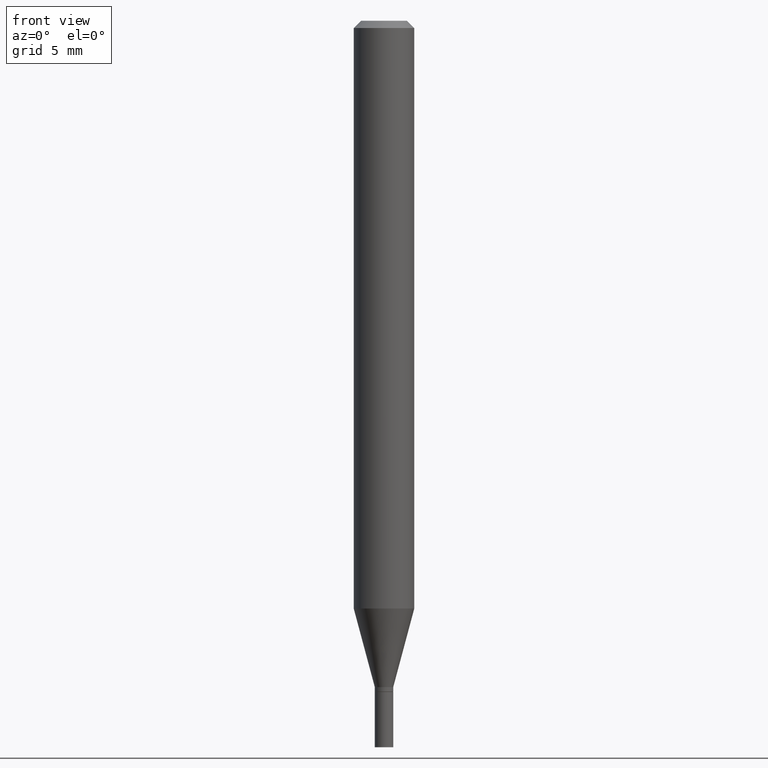
[diagram: clean part render]
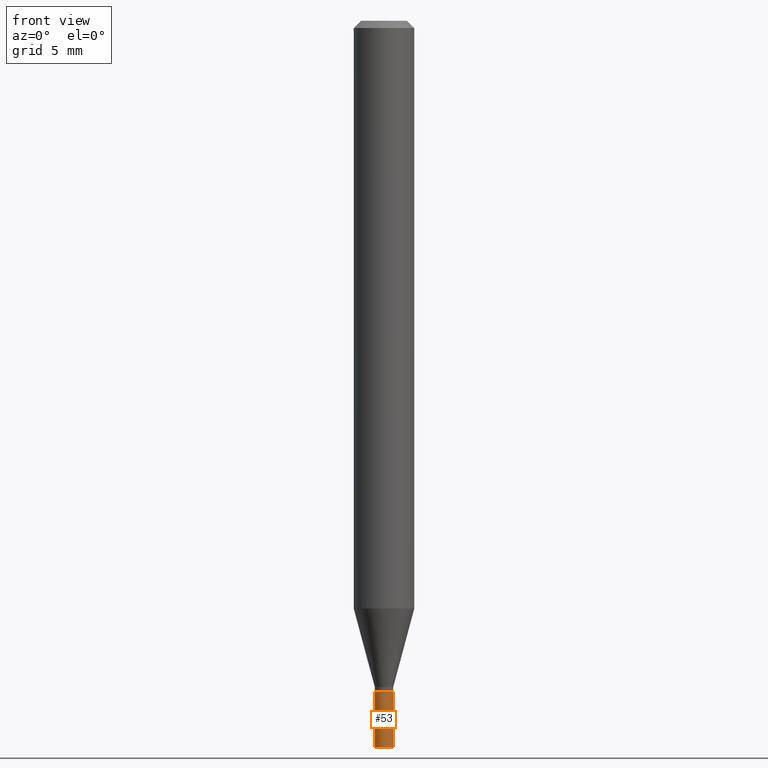
[diagram: same view with one face highlighted and labeled with its STEP entity id]
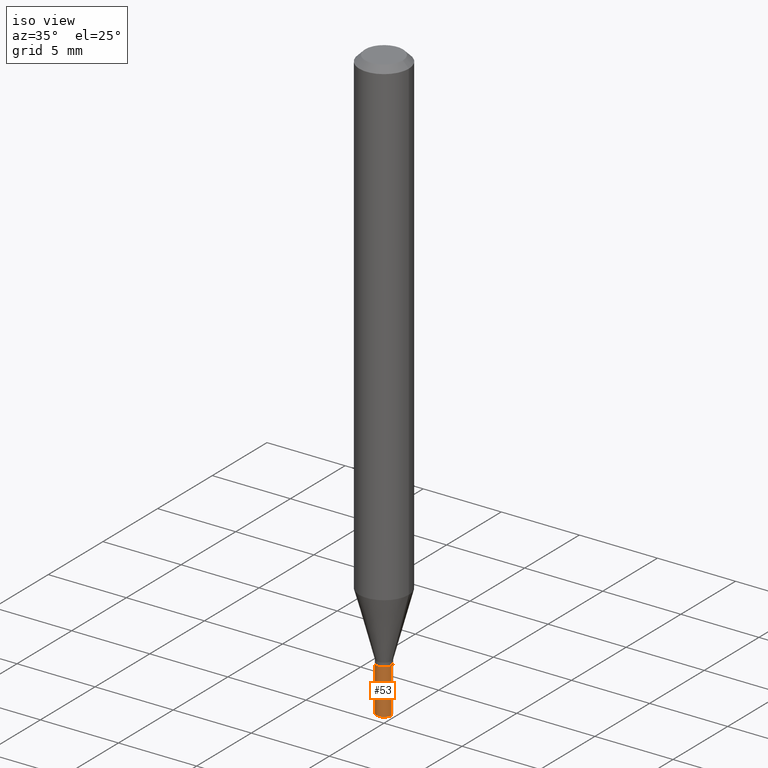
[diagram: same view with one face highlighted and labeled with its STEP entity id]
A machine part, front view. The second image highlights one B-rep face of the part: STEP entity #53.
A second angle (iso view) of the same face is appended — the face is thin or edge-on in the first view.
In plain terms, the highlighted cylindrical surface (edge-blend (fillet) strip) has radius 0.4826 mm, axis along (-0, 0, 1).
Its self-contained STEP definition (entity closure, byte-faithful):
#2 = EDGE_CURVE ( 'NONE', #32, #14, #230, .T. ) ;
#14 = VERTEX_POINT ( 'NONE', #415 ) ;
#16 = DIRECTION ( 'NONE',  ( -2.445468806185136877E-29, 3.491481338843145188E-15, 1.000000000000000000 ) ) ;
#19 = AXIS2_PLACEMENT_3D ( 'NONE', #163, #458, #326 ) ;
#24 = ORIENTED_EDGE ( 'NONE', *, *, #303, .T. ) ;
#32 = VERTEX_POINT ( 'NONE', #166 ) ;
#53 = ADVANCED_FACE ( 'NONE', ( #343 ), #127, .T. ) ;
#63 = CARTESIAN_POINT ( 'NONE',  ( 0.01899999999999999953, -4.971869426512640168E-15, -1.386000000000000121 ) ) ;
#79 = CARTESIAN_POINT ( 'NONE',  ( -0.01899999999999999953, -4.903204452156240515E-15, -1.386000000000000121 ) ) ;
#110 = AXIS2_PLACEMENT_3D ( 'NONE', #317, #450, #283 ) ;
#118 = EDGE_CURVE ( 'NONE', #352, #209, #212, .T. ) ;
#119 = CARTESIAN_POINT ( 'NONE',  ( 0.000000000000000000, 0.000000000000000000, 0.000000000000000000 ) ) ;
#127 = CYLINDRICAL_SURFACE ( 'NONE', #455, 0.01899999999999999953 ) ;
#163 = CARTESIAN_POINT ( 'NONE',  ( 3.389419765372599969E-29, -4.839193135636600375E-15, -1.386000000000000121 ) ) ;
#166 = CARTESIAN_POINT ( 'NONE',  ( -0.01899999999999999953, -4.903204452156240515E-15, -1.500000000000000222 ) ) ;
#196 = CARTESIAN_POINT ( 'NONE',  ( 0.01899999999999999953, -1.326762908760390537E-16, 9.264735874012277376E-31 ) ) ;
#209 = VERTEX_POINT ( 'NONE', #63 ) ;
#212 = CIRCLE ( 'NONE', #19, 0.01899999999999999953 ) ;
#216 = EDGE_CURVE ( 'NONE', #32, #352, #435, .T. ) ;
#230 = CIRCLE ( 'NONE', #110, 0.01899999999999999953 ) ;
#238 = ORIENTED_EDGE ( 'NONE', *, *, #2, .T. ) ;
#246 = DIRECTION ( 'NONE',  ( -2.445468806185136597E-29, 3.491481338843145583E-15, 1.000000000000000000 ) ) ;
#283 = DIRECTION ( 'NONE',  ( 1.000000000000000000, -6.982962677686281699E-15, 0.000000000000000000 ) ) ;
#296 = DIRECTION ( 'NONE',  ( -2.445468806185136877E-29, 3.491481338843145188E-15, 1.000000000000000000 ) ) ;
#303 = EDGE_CURVE ( 'NONE', #14, #209, #367, .T. ) ;
#317 = CARTESIAN_POINT ( 'NONE',  ( 3.668203209277704895E-29, -5.237222008264718177E-15, -1.500000000000000222 ) ) ;
#320 = ORIENTED_EDGE ( 'NONE', *, *, #118, .F. ) ;
#326 = DIRECTION ( 'NONE',  ( 1.000000000000000000, -6.982962677686281699E-15, 0.000000000000000000 ) ) ;
#343 = FACE_OUTER_BOUND ( 'NONE', #462, .T. ) ;
#352 = VERTEX_POINT ( 'NONE', #79 ) ;
#367 = LINE ( 'NONE', #196, #448 ) ;
#415 = CARTESIAN_POINT ( 'NONE',  ( 0.01899999999999999953, -5.369898299140757970E-15, -1.500000000000000222 ) ) ;
#425 = DIRECTION ( 'NONE',  ( 1.000000000000000000, -6.982962677686265922E-15, 4.876176775795935793E-29 ) ) ;
#435 = LINE ( 'NONE', #440, #465 ) ;
#440 = CARTESIAN_POINT ( 'NONE',  ( -0.01899999999999999953, 1.350031197944190320E-16, -9.345976671484319990E-31 ) ) ;
#447 = ORIENTED_EDGE ( 'NONE', *, *, #216, .F. ) ;
#448 = VECTOR ( 'NONE', #16, 39.37007874015748143 ) ;
#450 = DIRECTION ( 'NONE',  ( -2.445468806185136597E-29, 3.491481338843145583E-15, 1.000000000000000000 ) ) ;
#455 = AXIS2_PLACEMENT_3D ( 'NONE', #119, #246, #425 ) ;
#458 = DIRECTION ( 'NONE',  ( -2.445468806185136597E-29, 3.491481338843145583E-15, 1.000000000000000000 ) ) ;
#462 = EDGE_LOOP ( 'NONE', ( #447, #238, #24, #320 ) ) ;
#465 = VECTOR ( 'NONE', #296, 39.37007874015748143 ) ;